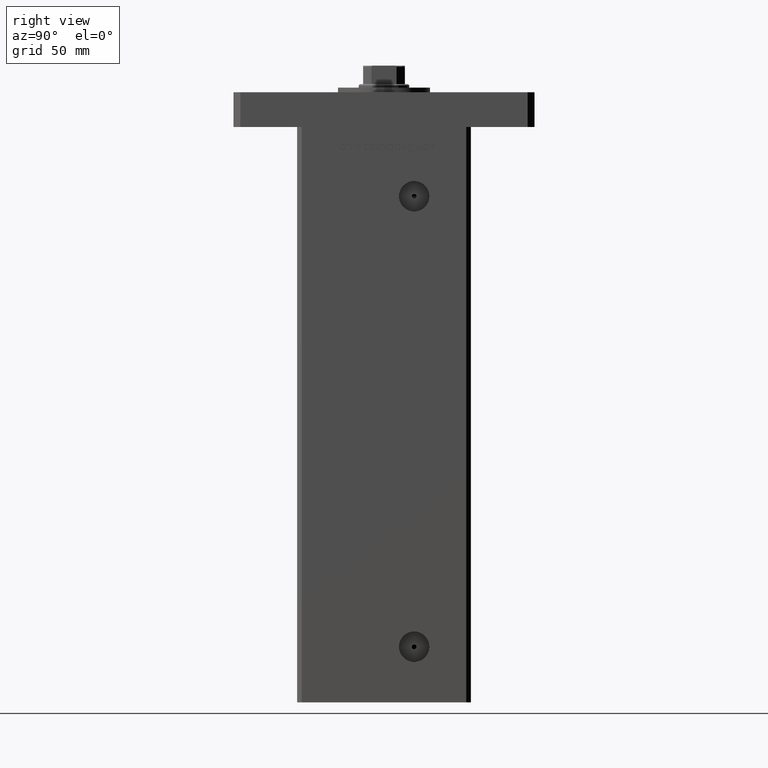
[diagram: clean part render]
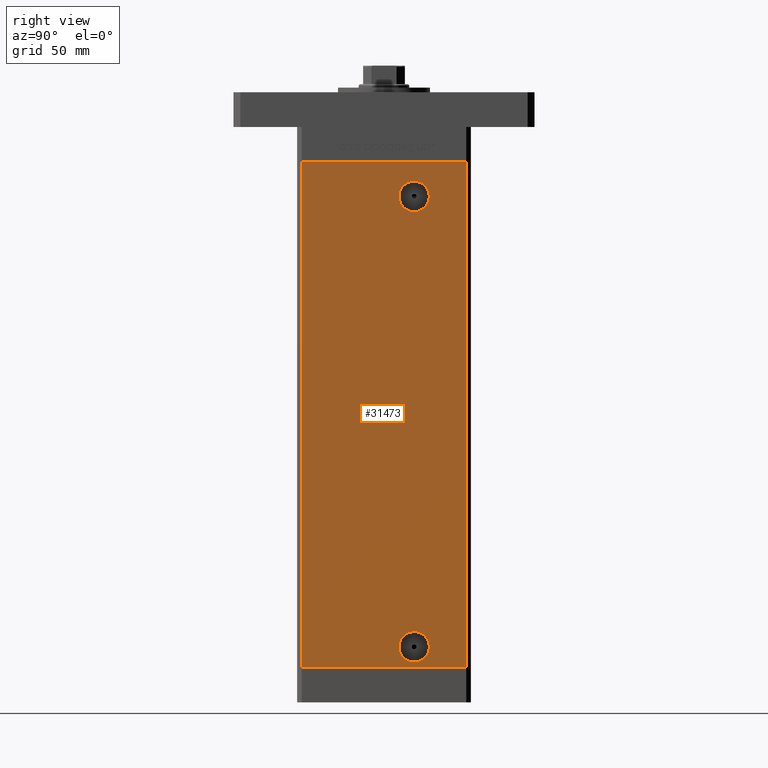
[diagram: same view with one face highlighted and labeled with its STEP entity id]
A machine part, right view. The second image highlights one B-rep face of the part: STEP entity #31473.
In plain terms, the highlighted planar face has unit normal (1, -0, 0).
Its self-contained STEP definition (entity closure, byte-faithful):
#1357 = VERTEX_POINT ( 'NONE', #53226 ) ;
#1812 = CIRCLE ( 'NONE', #34694, 6.580000000000014282 ) ;
#2606 = EDGE_CURVE ( 'NONE', #45704, #44679, #24640, .T. ) ;
#3684 = AXIS2_PLACEMENT_3D ( 'NONE', #25438, #46580, #8911 ) ;
#4374 = CARTESIAN_POINT ( 'NONE',  ( 42.49999999999999289, 13.00000000000000000, 9.000000000000012434 ) ) ;
#4943 = VERTEX_POINT ( 'NONE', #41777 ) ;
#4956 = EDGE_CURVE ( 'NONE', #24352, #1357, #17669, .T. ) ;
#6516 = DIRECTION ( 'NONE',  ( 0.000000000000000000, 1.000000000000000000, 0.000000000000000000 ) ) ;
#7489 = AXIS2_PLACEMENT_3D ( 'NONE', #4374, #9782, #6516 ) ;
#8911 = DIRECTION ( 'NONE',  ( 2.931927001650941360E-16, 1.000000000000000000, 0.000000000000000000 ) ) ;
#8933 = LINE ( 'NONE', #33847, #51893 ) ;
#9782 = DIRECTION ( 'NONE',  ( 1.000000000000000000, -2.275047181608927644E-16, 0.000000000000000000 ) ) ;
#11694 = VECTOR ( 'NONE', #32225, 1000.000000000000000 ) ;
#11833 = CIRCLE ( 'NONE', #7489, 6.579999999999997407 ) ;
#12444 = FACE_BOUND ( 'NONE', #35724, .T. ) ;
#13207 = EDGE_CURVE ( 'NONE', #18114, #44679, #8933, .T. ) ;
#15006 = DIRECTION ( 'NONE',  ( 1.000000000000000000, -2.275047181608927644E-16, 0.000000000000000000 ) ) ;
#15168 = DIRECTION ( 'NONE',  ( -2.931927001650941360E-16, -1.000000000000000000, 0.000000000000000000 ) ) ;
#16122 = CARTESIAN_POINT ( 'NONE',  ( 42.50000000000000711, 35.50000000000001421, 218.5000000000000000 ) ) ;
#16965 = ORIENTED_EDGE ( 'NONE', *, *, #2606, .T. ) ;
#17177 = CARTESIAN_POINT ( 'NONE',  ( 42.49999999999998579, -35.50000000000000711, 218.5000000000000000 ) ) ;
#17669 = CIRCLE ( 'NONE', #20382, 6.580000000000014282 ) ;
#18114 = VERTEX_POINT ( 'NONE', #31469 ) ;
#19568 = DIRECTION ( 'NONE',  ( 1.000000000000000000, -2.275047181608927644E-16, 0.000000000000000000 ) ) ;
#20382 = AXIS2_PLACEMENT_3D ( 'NONE', #42044, #50167, #42838 ) ;
#21105 = FACE_OUTER_BOUND ( 'NONE', #25501, .T. ) ;
#21377 = PLANE ( 'NONE',  #3684 ) ;
#21693 = EDGE_CURVE ( 'NONE', #1357, #24352, #1812, .T. ) ;
#23161 = CARTESIAN_POINT ( 'NONE',  ( 42.49999999999998579, -35.50000000000000711, 0.000000000000000000 ) ) ;
#23331 = VERTEX_POINT ( 'NONE', #52565 ) ;
#23555 = LINE ( 'NONE', #35742, #34874 ) ;
#24352 = VERTEX_POINT ( 'NONE', #35410 ) ;
#24374 = ORIENTED_EDGE ( 'NONE', *, *, #33686, .F. ) ;
#24553 = VECTOR ( 'NONE', #49457, 1000.000000000000000 ) ;
#24640 = LINE ( 'NONE', #52847, #11694 ) ;
#25438 = CARTESIAN_POINT ( 'NONE',  ( 42.50000000000000711, 35.50000000000001421, 218.5000000000000000 ) ) ;
#25501 = EDGE_LOOP ( 'NONE', ( #29245, #24374, #38368, #16965 ) ) ;
#27827 = EDGE_CURVE ( 'NONE', #23331, #45704, #23555, .T. ) ;
#29245 = ORIENTED_EDGE ( 'NONE', *, *, #13207, .F. ) ;
#29530 = DIRECTION ( 'NONE',  ( -2.931927001650941360E-16, -1.000000000000000000, 0.000000000000000000 ) ) ;
#29810 = AXIS2_PLACEMENT_3D ( 'NONE', #35811, #19568, #36092 ) ;
#31469 = CARTESIAN_POINT ( 'NONE',  ( 42.50000000000000711, 35.50000000000001421, 0.000000000000000000 ) ) ;
#31473 = ADVANCED_FACE ( 'NONE', ( #12444, #38172, #21105 ), #21377, .T. ) ;
#32225 = DIRECTION ( 'NONE',  ( -0.000000000000000000, -0.000000000000000000, -1.000000000000000000 ) ) ;
#32479 = CARTESIAN_POINT ( 'NONE',  ( 42.49999999999999289, 6.420000000000000817, 9.000000000000012434 ) ) ;
#33171 = LINE ( 'NONE', #16122, #24553 ) ;
#33686 = EDGE_CURVE ( 'NONE', #23331, #18114, #33171, .T. ) ;
#33847 = CARTESIAN_POINT ( 'NONE',  ( 42.50000000000000711, 35.50000000000001421, 0.000000000000000000 ) ) ;
#34694 = AXIS2_PLACEMENT_3D ( 'NONE', #35056, #15006, #51604 ) ;
#34874 = VECTOR ( 'NONE', #15168, 1000.000000000000000 ) ;
#35056 = CARTESIAN_POINT ( 'NONE',  ( 42.49999999999999289, 13.00000000000000000, 203.5000000000000000 ) ) ;
#35410 = CARTESIAN_POINT ( 'NONE',  ( 42.49999999999999289, 19.58000000000001251, 203.5000000000000000 ) ) ;
#35724 = EDGE_LOOP ( 'NONE', ( #52770, #36439 ) ) ;
#35742 = CARTESIAN_POINT ( 'NONE',  ( 42.50000000000000711, 35.50000000000001421, 218.5000000000000000 ) ) ;
#35811 = CARTESIAN_POINT ( 'NONE',  ( 42.49999999999999289, 13.00000000000000000, 9.000000000000012434 ) ) ;
#36054 = EDGE_CURVE ( 'NONE', #4943, #36355, #53199, .T. ) ;
#36092 = DIRECTION ( 'NONE',  ( 0.000000000000000000, 1.000000000000000000, 0.000000000000000000 ) ) ;
#36355 = VERTEX_POINT ( 'NONE', #32479 ) ;
#36439 = ORIENTED_EDGE ( 'NONE', *, *, #21693, .F. ) ;
#37014 = EDGE_LOOP ( 'NONE', ( #48918, #47281 ) ) ;
#38172 = FACE_BOUND ( 'NONE', #37014, .T. ) ;
#38368 = ORIENTED_EDGE ( 'NONE', *, *, #27827, .T. ) ;
#41777 = CARTESIAN_POINT ( 'NONE',  ( 42.49999999999999289, 19.57999999999999829, 9.000000000000012434 ) ) ;
#42044 = CARTESIAN_POINT ( 'NONE',  ( 42.49999999999999289, 13.00000000000000000, 203.5000000000000000 ) ) ;
#42838 = DIRECTION ( 'NONE',  ( 0.000000000000000000, 1.000000000000000000, 0.000000000000000000 ) ) ;
#44679 = VERTEX_POINT ( 'NONE', #23161 ) ;
#45704 = VERTEX_POINT ( 'NONE', #17177 ) ;
#46580 = DIRECTION ( 'NONE',  ( 1.000000000000000000, -2.931927001650941360E-16, 0.000000000000000000 ) ) ;
#47281 = ORIENTED_EDGE ( 'NONE', *, *, #51630, .F. ) ;
#48918 = ORIENTED_EDGE ( 'NONE', *, *, #36054, .F. ) ;
#49457 = DIRECTION ( 'NONE',  ( -0.000000000000000000, -0.000000000000000000, -1.000000000000000000 ) ) ;
#50167 = DIRECTION ( 'NONE',  ( 1.000000000000000000, -2.275047181608927644E-16, 0.000000000000000000 ) ) ;
#51604 = DIRECTION ( 'NONE',  ( 0.000000000000000000, 1.000000000000000000, 0.000000000000000000 ) ) ;
#51630 = EDGE_CURVE ( 'NONE', #36355, #4943, #11833, .T. ) ;
#51893 = VECTOR ( 'NONE', #29530, 1000.000000000000000 ) ;
#52565 = CARTESIAN_POINT ( 'NONE',  ( 42.50000000000000711, 35.50000000000001421, 218.5000000000000000 ) ) ;
#52770 = ORIENTED_EDGE ( 'NONE', *, *, #4956, .F. ) ;
#52847 = CARTESIAN_POINT ( 'NONE',  ( 42.49999999999998579, -35.50000000000000711, 218.5000000000000000 ) ) ;
#53199 = CIRCLE ( 'NONE', #29810, 6.579999999999997407 ) ;
#53226 = CARTESIAN_POINT ( 'NONE',  ( 42.49999999999999289, 6.419999999999983942, 203.5000000000000000 ) ) ;